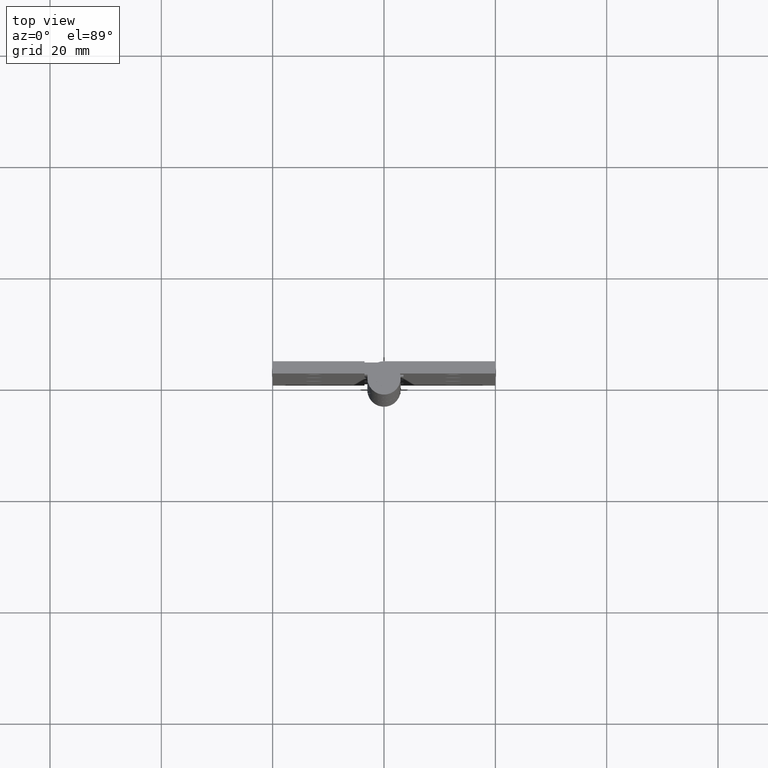
[diagram: clean part render]
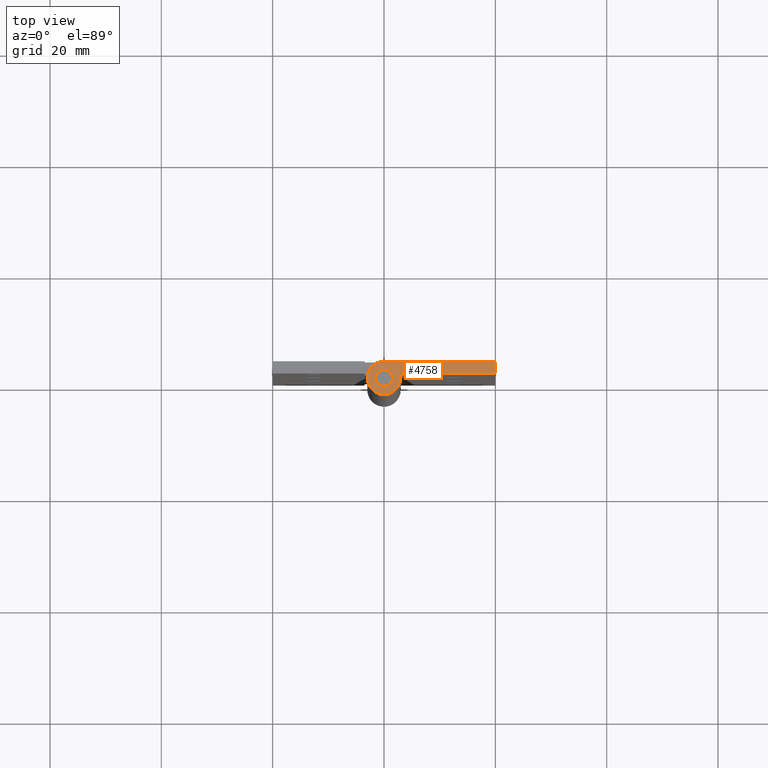
[diagram: same view with one face highlighted and labeled with its STEP entity id]
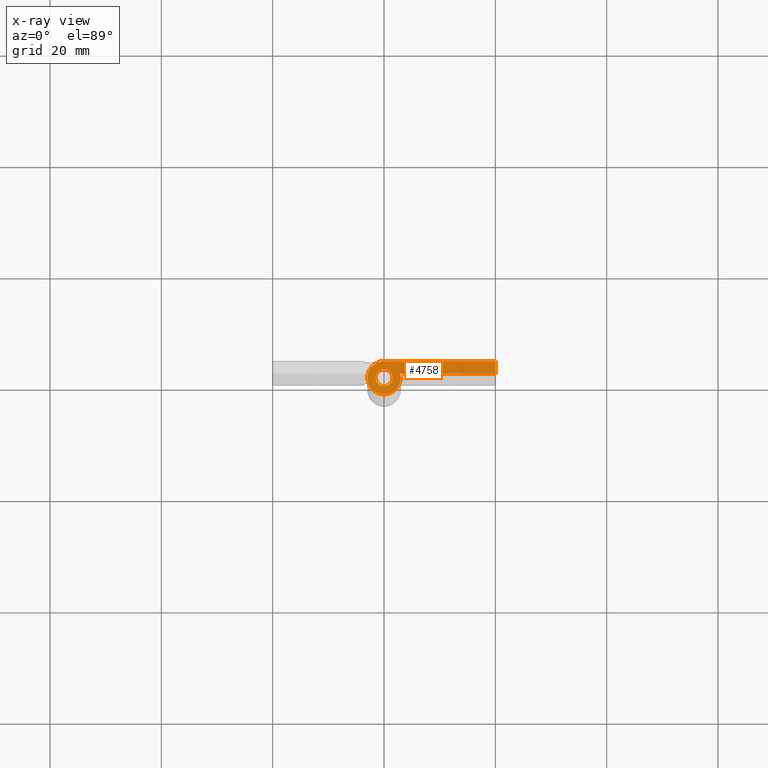
[diagram: x-ray of the same camera — body ghosted, the highlighted face saturated]
A machine part, top view. The second image highlights one B-rep face of the part: STEP entity #4758.
The next image is the same camera in x-ray: the body ghosted, the highlighted face saturated — about 0% of this face is hidden behind the body in this view.
In plain terms, the highlighted face is a freeform B-spline surface patch.
Its self-contained STEP definition (entity closure, byte-faithful):
#2535=CARTESIAN_POINT('',(0.091572810244427,-1.497202197575176,125.0));
#2536=VERTEX_POINT('',#2535);
#2542=CARTESIAN_POINT('',(1.500000000000000,0.0,125.0));
#2543=VERTEX_POINT('',#2542);
#2544=CARTESIAN_POINT('',(1.500000000000000,0.0,125.0));
#2545=CARTESIAN_POINT('',(1.499999999999999,-1.411059098579355,124.999999999999990));
#2546=CARTESIAN_POINT('',(0.091572810244427,-1.497202197575177,125.000000000000030));
#2554=(BOUNDED_CURVE()B_SPLINE_CURVE(2,(#2544,#2545,#2546),.UNSPECIFIED.,.F.,.U.)B_SPLINE_CURVE_WITH_KNOTS((3,3),(0.500000000000000,0.739332962024812),.UNSPECIFIED.)CURVE()GEOMETRIC_REPRESENTATION_ITEM()RATIONAL_B_SPLINE_CURVE((1.0,0.719603993537580,0.976072041207794))REPRESENTATION_ITEM(''));
#2555=EDGE_CURVE('',#2543,#2536,#2554,.T.);
#2557=CARTESIAN_POINT('',(-0.177051352957088,1.489514289429969,125.0));
#2558=VERTEX_POINT('',#2557);
#2559=CARTESIAN_POINT('',(-0.177051352957088,1.489514289429968,125.000000000000030));
#2560=CARTESIAN_POINT('',(-0.088836180460091,1.500000000000000,124.999999999999970));
#2561=CARTESIAN_POINT('',(0.0,1.500000000000000,125.0));
#2562=CARTESIAN_POINT('',(1.500000000000000,1.500000000000000,125.0));
#2563=CARTESIAN_POINT('',(1.500000000000000,0.0,125.0));
#2571=(BOUNDED_CURVE()B_SPLINE_CURVE(2,(#2559,#2560,#2561,#2562,#2563),.UNSPECIFIED.,.F.,.U.)B_SPLINE_CURVE_WITH_KNOTS((3,2,3),(0.229562473295085,0.250000000000000,0.500000000000000),.UNSPECIFIED.)CURVE()GEOMETRIC_REPRESENTATION_ITEM()RATIONAL_B_SPLINE_CURVE((0.956026753755581,0.976055948075247,1.0,0.707106781186548,1.0))REPRESENTATION_ITEM(''));
#2572=EDGE_CURVE('',#2558,#2543,#2571,.T.);
#2616=CARTESIAN_POINT('',(-1.500000000000000,0.0,125.0));
#2617=VERTEX_POINT('',#2616);
#2618=CARTESIAN_POINT('',(-1.500000000000000,0.0,125.0));
#2619=CARTESIAN_POINT('',(-1.500000000000001,1.332261787176134,124.999999999999970));
#2620=CARTESIAN_POINT('',(-0.177051352957088,1.489514289429968,125.000000000000040));
#2628=(BOUNDED_CURVE()B_SPLINE_CURVE(2,(#2618,#2619,#2620),.UNSPECIFIED.,.F.,.U.)B_SPLINE_CURVE_WITH_KNOTS((3,3),(0.0,0.229562473295085),.UNSPECIFIED.)CURVE()GEOMETRIC_REPRESENTATION_ITEM()RATIONAL_B_SPLINE_CURVE((1.0,0.731050833111301,0.956026753755581))REPRESENTATION_ITEM(''));
#2629=EDGE_CURVE('',#2617,#2558,#2628,.T.);
#2631=CARTESIAN_POINT('',(0.091572810244427,-1.497202197575176,124.999999999999960));
#2632=CARTESIAN_POINT('',(0.045829145892667,-1.500000000000000,125.000000000000010));
#2633=CARTESIAN_POINT('',(0.0,-1.500000000000000,125.0));
#2634=CARTESIAN_POINT('',(-1.500000000000000,-1.500000000000000,125.0));
#2635=CARTESIAN_POINT('',(-1.500000000000000,0.0,125.0));
#2643=(BOUNDED_CURVE()B_SPLINE_CURVE(2,(#2631,#2632,#2633,#2634,#2635),.UNSPECIFIED.,.F.,.U.)B_SPLINE_CURVE_WITH_KNOTS((3,2,3),(0.739332962024812,0.750000000000000,1.0),.UNSPECIFIED.)CURVE()GEOMETRIC_REPRESENTATION_ITEM()RATIONAL_B_SPLINE_CURVE((0.976072041207794,0.987502787648967,1.0,0.707106781186548,1.0))REPRESENTATION_ITEM(''));
#2644=EDGE_CURVE('',#2536,#2617,#2643,.T.);
#4703=CARTESIAN_POINT('',(-4.139730083765442,-3.299396621393366,125.0));
#4704=CARTESIAN_POINT('',(21.148416706129311,-3.299396621393366,125.0));
#4705=CARTESIAN_POINT('',(-4.139730083765442,3.299685716663985,125.0));
#4706=CARTESIAN_POINT('',(21.148416706129321,3.299685716663985,125.0));
#4707=B_SPLINE_SURFACE_WITH_KNOTS('',1,1,((#4703,#4705),(#4704,#4706)),.UNSPECIFIED.,.F.,.F.,.U.,(2,2),(2,2),(0.0,25.288146789894761),(0.0,6.599082338057350),.UNSPECIFIED.);
#4708=CARTESIAN_POINT('',(-5.510729E-016,3.0,125.0));
#4709=VERTEX_POINT('',#4708);
#4710=CARTESIAN_POINT('',(20.0,3.0,125.0));
#4711=VERTEX_POINT('',#4710);
#4712=CARTESIAN_POINT('',(-5.510729E-016,3.0,125.0));
#4713=CARTESIAN_POINT('',(20.0,3.0,125.0));
#4714=QUASI_UNIFORM_CURVE('',1,(#4712,#4713),.UNSPECIFIED.,.F.,.U.);
#4715=EDGE_CURVE('',#4709,#4711,#4714,.T.);
#4716=ORIENTED_EDGE('',*,*,#4715,.F.);
#4717=CARTESIAN_POINT('',(2.891366458960195,0.799999999999990,125.0));
#4718=VERTEX_POINT('',#4717);
#4719=CARTESIAN_POINT('',(2.891366458960195,0.799999999999991,125.0));
#4720=CARTESIAN_POINT('',(3.465870241890749,-1.276376210638973,125.000000000000070));
#4721=CARTESIAN_POINT('',(1.681895628722578,-2.484195462133341,125.0));
#4722=CARTESIAN_POINT('',(-0.102078984445593,-3.692014713627709,125.000000000000070));
#4723=CARTESIAN_POINT('',(-1.816590212458499,-2.387467277262662,125.0));
#4724=CARTESIAN_POINT('',(-3.531101440471402,-1.082919840897615,125.000000000000070));
#4725=CARTESIAN_POINT('',(-2.842745313230505,0.958540079551190,125.0));
#4726=CARTESIAN_POINT('',(-2.154389185989606,3.000000000000000,125.000000000000070));
#4727=CARTESIAN_POINT('',(0.0,3.0,125.0));
#4735=(BOUNDED_CURVE()B_SPLINE_CURVE(2,(#4719,#4720,#4721,#4722,#4723,#4724,#4725,#4726,#4727),.UNSPECIFIED.,.F.,.U.)B_SPLINE_CURVE_WITH_KNOTS((3,2,2,2,3),(0.0,0.250000000000000,0.500000000000000,0.750000000000000,1.0),.UNSPECIFIED.)CURVE()GEOMETRIC_REPRESENTATION_ITEM()RATIONAL_B_SPLINE_CURVE((1.0,0.812254073504836,1.0,0.812254073504836,1.0,0.812254073504836,1.0,0.812254073504836,1.0))REPRESENTATION_ITEM(''));
#4736=EDGE_CURVE('',#4718,#4709,#4735,.T.);
#4737=ORIENTED_EDGE('',*,*,#4736,.F.);
#4738=CARTESIAN_POINT('',(20.0,0.799999999999990,125.0));
#4739=VERTEX_POINT('',#4738);
#4740=CARTESIAN_POINT('',(20.0,0.799999999999990,125.0));
#4741=CARTESIAN_POINT('',(2.891366458960195,0.799999999999990,125.0));
#4742=QUASI_UNIFORM_CURVE('',1,(#4740,#4741),.UNSPECIFIED.,.F.,.U.);
#4743=EDGE_CURVE('',#4739,#4718,#4742,.T.);
#4744=ORIENTED_EDGE('',*,*,#4743,.F.);
#4745=CARTESIAN_POINT('',(20.0,3.0,125.0));
#4746=CARTESIAN_POINT('',(20.0,0.799999999999990,125.0));
#4747=QUASI_UNIFORM_CURVE('',1,(#4745,#4746),.UNSPECIFIED.,.F.,.U.);
#4748=EDGE_CURVE('',#4711,#4739,#4747,.T.);
#4749=ORIENTED_EDGE('',*,*,#4748,.F.);
#4750=EDGE_LOOP('',(#4716,#4737,#4744,#4749));
#4751=FACE_OUTER_BOUND('',#4750,.T.);
#4752=ORIENTED_EDGE('',*,*,#2555,.T.);
#4753=ORIENTED_EDGE('',*,*,#2644,.T.);
#4754=ORIENTED_EDGE('',*,*,#2629,.T.);
#4755=ORIENTED_EDGE('',*,*,#2572,.T.);
#4756=EDGE_LOOP('',(#4752,#4753,#4754,#4755));
#4757=FACE_BOUND('',#4756,.T.);
#4758=ADVANCED_FACE('',(#4751,#4757),#4707,.T.);